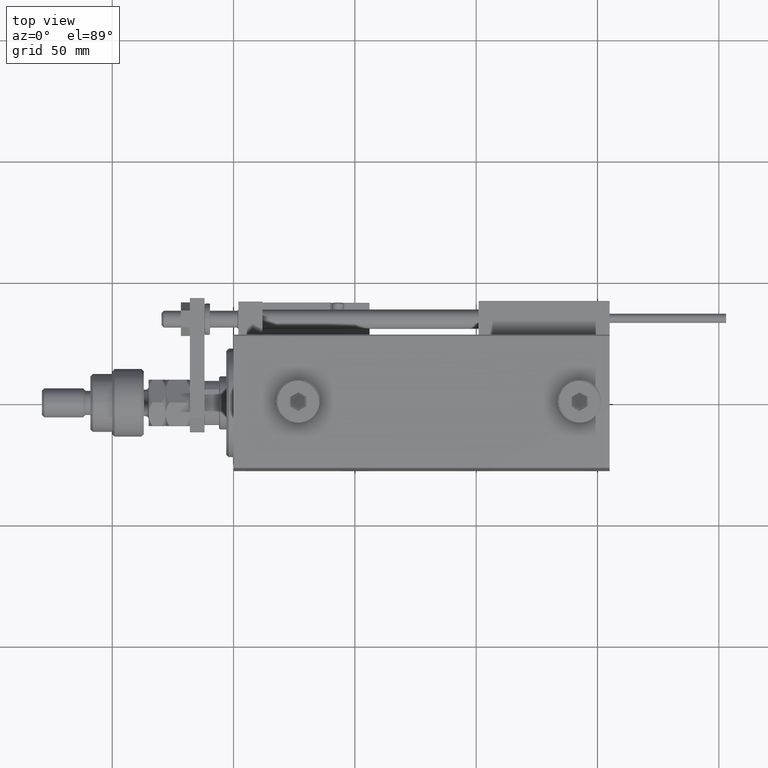
[diagram: clean part render]
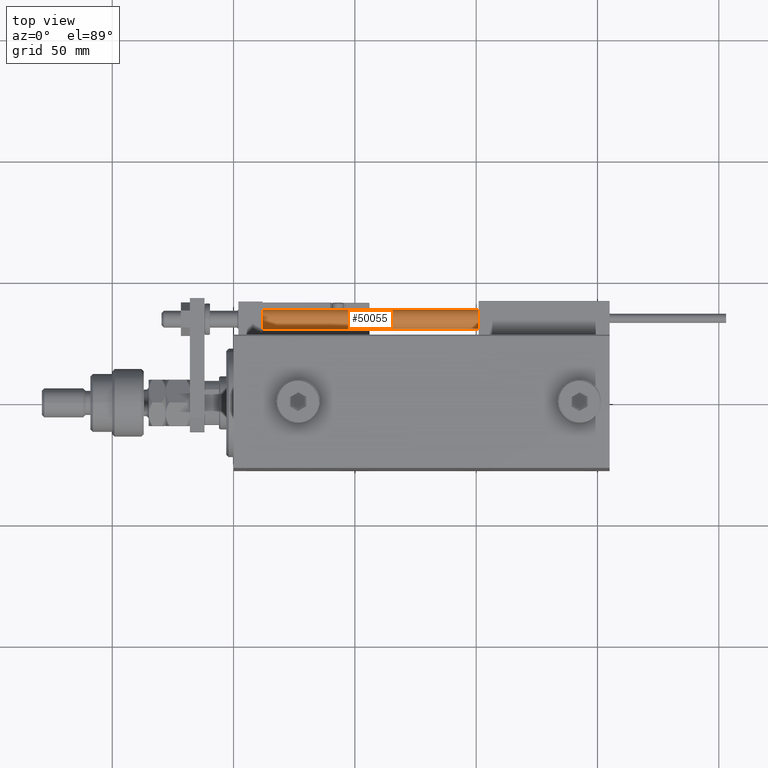
[diagram: same view with one face highlighted and labeled with its STEP entity id]
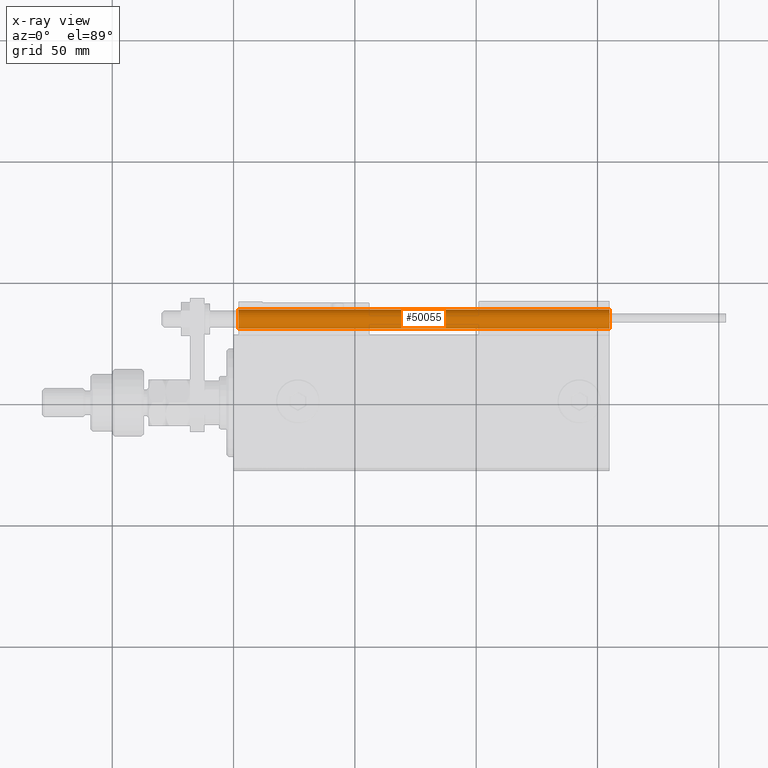
[diagram: x-ray of the same camera — body ghosted, the highlighted face saturated]
A machine part, top view. The second image highlights one B-rep face of the part: STEP entity #50055.
The next image is the same camera in x-ray: the body ghosted, the highlighted face saturated — about 0% of this face is hidden behind the body in this view.
In plain terms, the highlighted cylindrical surface (edge-blend (fillet) strip) has radius 4 mm, axis along (-1, 0, 0).
Its self-contained STEP definition (entity closure, byte-faithful):
#1125 = VERTEX_POINT ( 'NONE', #42726 ) ;
#1854 = DIRECTION ( 'NONE',  ( -0.000000000000000000, -0.000000000000000000, -1.000000000000000000 ) ) ;
#2127 = CYLINDRICAL_SURFACE ( 'NONE', #35733, 4.000000000000000000 ) ;
#3650 = ORIENTED_EDGE ( 'NONE', *, *, #12624, .F. ) ;
#3652 = ORIENTED_EDGE ( 'NONE', *, *, #25366, .T. ) ;
#4513 = VECTOR ( 'NONE', #21417, 1000.000000000000000 ) ;
#8446 = CARTESIAN_POINT ( 'NONE',  ( -4.000000000000000000, 0.000000000000000000, 155.0000000000000000 ) ) ;
#9874 = AXIS2_PLACEMENT_3D ( 'NONE', #25911, #51443, #42660 ) ;
#12624 = EDGE_CURVE ( 'NONE', #40868, #42095, #48343, .T. ) ;
#13241 = AXIS2_PLACEMENT_3D ( 'NONE', #24139, #15567, #32385 ) ;
#15567 = DIRECTION ( 'NONE',  ( 0.000000000000000000, 0.000000000000000000, 1.000000000000000000 ) ) ;
#17288 = LINE ( 'NONE', #48560, #29441 ) ;
#17377 = ORIENTED_EDGE ( 'NONE', *, *, #32708, .F. ) ;
#19151 = DIRECTION ( 'NONE',  ( -0.000000000000000000, -0.000000000000000000, -1.000000000000000000 ) ) ;
#20114 = CARTESIAN_POINT ( 'NONE',  ( -4.000000000000000000, 0.000000000000000000, 2.000000000000029310 ) ) ;
#21417 = DIRECTION ( 'NONE',  ( -0.000000000000000000, -0.000000000000000000, -1.000000000000000000 ) ) ;
#21839 = EDGE_LOOP ( 'NONE', ( #3650, #3652, #23515, #17377 ) ) ;
#23515 = ORIENTED_EDGE ( 'NONE', *, *, #37036, .T. ) ;
#24139 = CARTESIAN_POINT ( 'NONE',  ( 0.000000000000000000, 0.000000000000000000, 155.0000000000000000 ) ) ;
#25366 = EDGE_CURVE ( 'NONE', #40868, #1125, #17288, .T. ) ;
#25911 = CARTESIAN_POINT ( 'NONE',  ( 0.000000000000000000, 0.000000000000000000, 2.000000000000029310 ) ) ;
#29441 = VECTOR ( 'NONE', #19151, 1000.000000000000000 ) ;
#29442 = CARTESIAN_POINT ( 'NONE',  ( -4.000000000000000000, 0.000000000000000000, 155.0000000000000000 ) ) ;
#31568 = DIRECTION ( 'NONE',  ( -1.000000000000000000, 0.000000000000000000, 0.000000000000000000 ) ) ;
#32385 = DIRECTION ( 'NONE',  ( 1.000000000000000000, 0.000000000000000000, 0.000000000000000000 ) ) ;
#32708 = EDGE_CURVE ( 'NONE', #42095, #32773, #50254, .T. ) ;
#32773 = VERTEX_POINT ( 'NONE', #20114 ) ;
#35733 = AXIS2_PLACEMENT_3D ( 'NONE', #44473, #1854, #31568 ) ;
#37036 = EDGE_CURVE ( 'NONE', #1125, #32773, #43266, .T. ) ;
#37212 = CARTESIAN_POINT ( 'NONE',  ( 4.000000000000000000, 4.898587196589412829E-16, 155.0000000000000000 ) ) ;
#40868 = VERTEX_POINT ( 'NONE', #37212 ) ;
#42095 = VERTEX_POINT ( 'NONE', #29442 ) ;
#42660 = DIRECTION ( 'NONE',  ( 1.000000000000000000, 0.000000000000000000, 0.000000000000000000 ) ) ;
#42726 = CARTESIAN_POINT ( 'NONE',  ( 4.000000000000000000, 4.898587196589412829E-16, 2.000000000000029310 ) ) ;
#43266 = CIRCLE ( 'NONE', #9874, 4.000000000000000000 ) ;
#44473 = CARTESIAN_POINT ( 'NONE',  ( 0.000000000000000000, 0.000000000000000000, 155.0000000000000000 ) ) ;
#44736 = FACE_OUTER_BOUND ( 'NONE', #21839, .T. ) ;
#48343 = CIRCLE ( 'NONE', #13241, 4.000000000000000000 ) ;
#48560 = CARTESIAN_POINT ( 'NONE',  ( 4.000000000000000000, 4.898587196589412829E-16, 155.0000000000000000 ) ) ;
#50055 = ADVANCED_FACE ( 'NONE', ( #44736 ), #2127, .T. ) ;
#50254 = LINE ( 'NONE', #8446, #4513 ) ;
#51443 = DIRECTION ( 'NONE',  ( -0.000000000000000000, -0.000000000000000000, 1.000000000000000000 ) ) ;